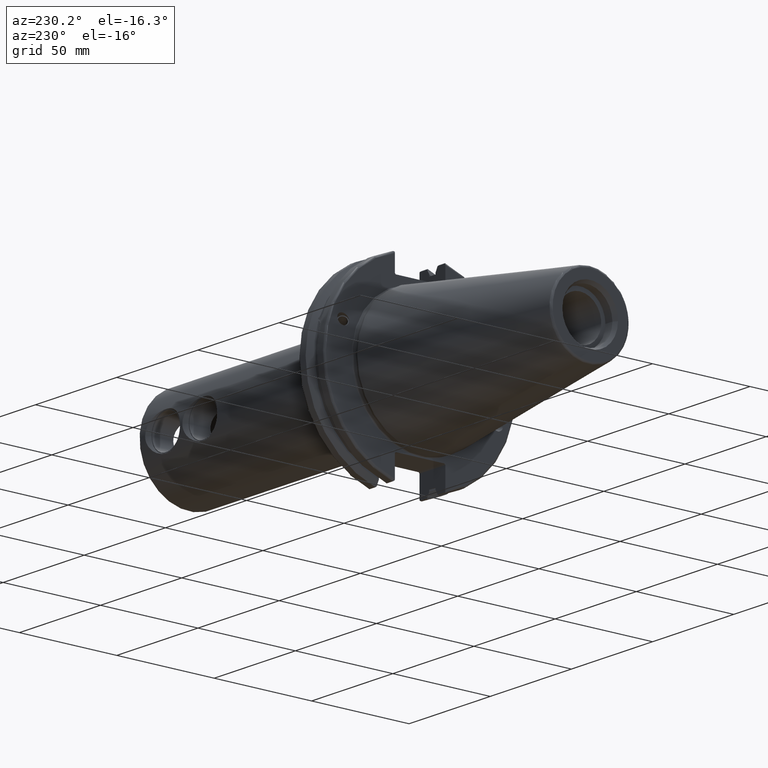
[diagram: clean part render]
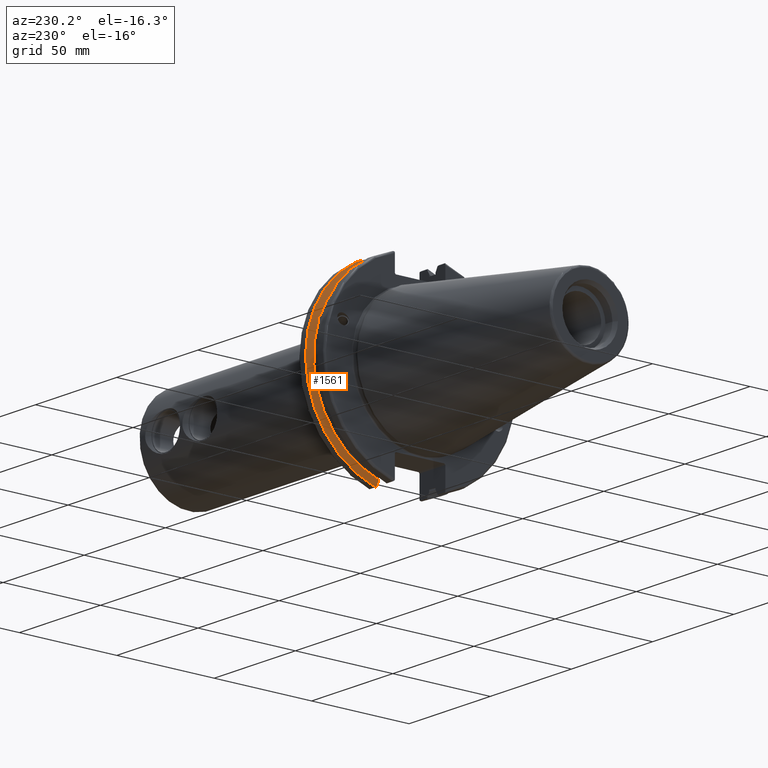
[diagram: same view with one face highlighted and labeled with its STEP entity id]
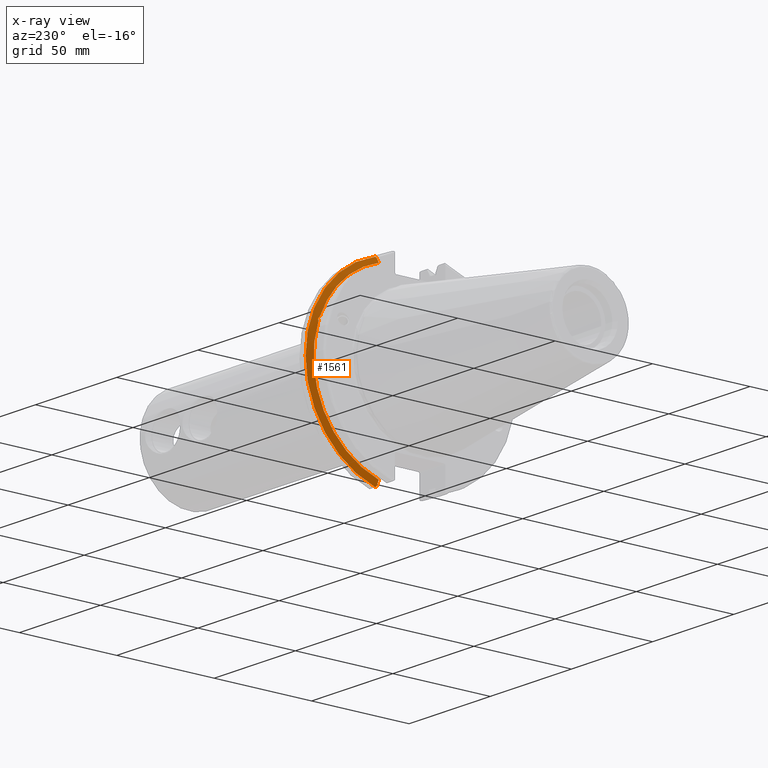
[diagram: x-ray of the same camera — body ghosted, the highlighted face saturated]
A machine part, auxiliary view. The second image highlights one B-rep face of the part: STEP entity #1561.
The next image is the same camera in x-ray: the body ghosted, the highlighted face saturated — about 0% of this face is hidden behind the body in this view.
In plain terms, the highlighted conical surface has half-angle 60 deg.
Its self-contained STEP definition (entity closure, byte-faithful):
#19=(
BOUNDED_CURVE()
B_SPLINE_CURVE(2,(#2975,#2976,#2977),.UNSPECIFIED.,.F.,.F.)
B_SPLINE_CURVE_WITH_KNOTS((3,3),(0.,0.27582391067312),.UNSPECIFIED.)
CURVE()
GEOMETRIC_REPRESENTATION_ITEM()
RATIONAL_B_SPLINE_CURVE((1.,1.00038235574463,1.0001287363678))
REPRESENTATION_ITEM('')
);
#20=(
BOUNDED_CURVE()
B_SPLINE_CURVE(2,(#2979,#2980,#2981),.UNSPECIFIED.,.F.,.F.)
B_SPLINE_CURVE_WITH_KNOTS((3,3),(0.,0.0648240472897789),.UNSPECIFIED.)
CURVE()
GEOMETRIC_REPRESENTATION_ITEM()
RATIONAL_B_SPLINE_CURVE((1.,1.00011477674848,1.00019140645968))
REPRESENTATION_ITEM('')
);
#21=(
BOUNDED_CURVE()
B_SPLINE_CURVE(2,(#2985,#2986,#2987),.UNSPECIFIED.,.F.,.F.)
B_SPLINE_CURVE_WITH_KNOTS((3,3),(0.325260944932466,0.390084992222202),
 .UNSPECIFIED.)
CURVE()
GEOMETRIC_REPRESENTATION_ITEM()
RATIONAL_B_SPLINE_CURVE((1.00019140645958,1.00011477674842,1.))
REPRESENTATION_ITEM('')
);
#22=(
BOUNDED_CURVE()
B_SPLINE_CURVE(2,(#2989,#2990,#2991),.UNSPECIFIED.,.F.,.F.)
B_SPLINE_CURVE_WITH_KNOTS((3,3),(0.0558332664531693,0.331657177124505),
 .UNSPECIFIED.)
CURVE()
GEOMETRIC_REPRESENTATION_ITEM()
RATIONAL_B_SPLINE_CURVE((1.00012873636717,1.00038235574273,1.))
REPRESENTATION_ITEM('')
);
#48=CONICAL_SURFACE('',#1715,47.8172386482472,1.0471975511966);
#156=FACE_OUTER_BOUND('',#262,.T.);
#262=EDGE_LOOP('',(#1218,#1219,#1220,#1221,#1222,#1223,#1224,#1225,#1226));
#350=B_SPLINE_CURVE_WITH_KNOTS('',3,(#2900,#2901,#2902,#2903,#2904,#2905,
#2906,#2907),.UNSPECIFIED.,.F.,.F.,(4,2,2,4),(0.426712868358719,0.441644498666905,
0.480313313223129,0.518982127779353),.UNSPECIFIED.);
#354=B_SPLINE_CURVE_WITH_KNOTS('',3,(#2962,#2963,#2964,#2965,#2966,#2967,
#2968,#2969),.UNSPECIFIED.,.F.,.F.,(4,2,2,4),(0.518982127779353,0.557650942335577,
0.5963197568918,0.611251387199989),.UNSPECIFIED.);
#596=CIRCLE('',#1716,46.4219772964944);
#597=CIRCLE('',#1717,49.2125);
#598=CIRCLE('',#1718,46.4219772964944);
#715=VERTEX_POINT('',#2897);
#716=VERTEX_POINT('',#2899);
#723=VERTEX_POINT('',#2960);
#724=VERTEX_POINT('',#2972);
#725=VERTEX_POINT('',#2974);
#726=VERTEX_POINT('',#2978);
#727=VERTEX_POINT('',#2982);
#728=VERTEX_POINT('',#2984);
#729=VERTEX_POINT('',#2988);
#900=EDGE_CURVE('',#716,#715,#350,.T.);
#908=EDGE_CURVE('',#715,#723,#354,.T.);
#909=EDGE_CURVE('',#723,#724,#596,.T.);
#910=EDGE_CURVE('',#724,#725,#19,.T.);
#911=EDGE_CURVE('',#726,#725,#20,.T.);
#912=EDGE_CURVE('',#727,#726,#597,.T.);
#913=EDGE_CURVE('',#728,#727,#21,.T.);
#914=EDGE_CURVE('',#728,#729,#22,.T.);
#915=EDGE_CURVE('',#729,#716,#598,.T.);
#1218=ORIENTED_EDGE('',*,*,#900,.T.);
#1219=ORIENTED_EDGE('',*,*,#908,.T.);
#1220=ORIENTED_EDGE('',*,*,#909,.T.);
#1221=ORIENTED_EDGE('',*,*,#910,.T.);
#1222=ORIENTED_EDGE('',*,*,#911,.F.);
#1223=ORIENTED_EDGE('',*,*,#912,.F.);
#1224=ORIENTED_EDGE('',*,*,#913,.F.);
#1225=ORIENTED_EDGE('',*,*,#914,.T.);
#1226=ORIENTED_EDGE('',*,*,#915,.T.);
#1561=ADVANCED_FACE('',(#156),#48,.T.);
#1715=AXIS2_PLACEMENT_3D('',#2971,#2003,#2004);
#1716=AXIS2_PLACEMENT_3D('',#2973,#2005,#2006);
#1717=AXIS2_PLACEMENT_3D('',#2983,#2007,#2008);
#1718=AXIS2_PLACEMENT_3D('',#2992,#2009,#2010);
#2003=DIRECTION('center_axis',(1.,0.,0.));
#2004=DIRECTION('ref_axis',(0.,1.,0.));
#2005=DIRECTION('center_axis',(1.,0.,0.));
#2006=DIRECTION('ref_axis',(0.,0.,-1.));
#2007=DIRECTION('center_axis',(1.,0.,0.));
#2008=DIRECTION('ref_axis',(0.,0.,-1.));
#2009=DIRECTION('center_axis',(1.,0.,0.));
#2010=DIRECTION('ref_axis',(0.,0.,-1.));
#2897=CARTESIAN_POINT('',(13.2341,43.923494649906,15.9868446375166));
#2899=CARTESIAN_POINT('',(13.0491,43.9096390749305,15.0646464421033));
#2900=CARTESIAN_POINT('Ctrl Pts',(13.0491,43.9096390749305,15.0646464421033));
#2901=CARTESIAN_POINT('Ctrl Pts',(13.0660815609661,43.9250360001461,15.1104047527575));
#2902=CARTESIAN_POINT('Ctrl Pts',(13.0821132459668,43.9385582852181,15.1564111356409));
#2903=CARTESIAN_POINT('Ctrl Pts',(13.1358132615496,43.9797830409459,15.3217566390709));
#2904=CARTESIAN_POINT('Ctrl Pts',(13.1719838933644,43.9989016655819,15.4570249042868));
#2905=CARTESIAN_POINT('Ctrl Pts',(13.2212913174802,43.9931221605126,15.7289849146254));
#2906=CARTESIAN_POINT('Ctrl Pts',(13.2341,43.9675796948952,15.8657219718732));
#2907=CARTESIAN_POINT('Ctrl Pts',(13.2341,43.923494649906,15.9868446375166));
#2960=CARTESIAN_POINT('',(13.0491,43.3201030900029,16.684383248648));
#2962=CARTESIAN_POINT('Ctrl Pts',(13.2341,43.923494649906,15.9868446375166));
#2963=CARTESIAN_POINT('Ctrl Pts',(13.2341,43.8794096049169,16.10796730316));
#2964=CARTESIAN_POINT('Ctrl Pts',(13.2212913174802,43.8110833825828,16.2291323464527));
#2965=CARTESIAN_POINT('Ctrl Pts',(13.1719838933644,43.6406982153492,16.441180795372));
#2966=CARTESIAN_POINT('Ctrl Pts',(13.1358132615496,43.5391037343221,16.5325130832406));
#2967=CARTESIAN_POINT('Ctrl Pts',(13.0821132459668,43.4012416983557,16.6326763251437));
#2968=CARTESIAN_POINT('Ctrl Pts',(13.0660815609661,43.3613106941341,16.6592273018006));
#2969=CARTESIAN_POINT('Ctrl Pts',(13.0491,43.3201030900029,16.684383248648));
#2971=CARTESIAN_POINT('Origin',(13.8546545170244,0.,0.));
#2972=CARTESIAN_POINT('',(13.0491,12.95,44.5791147973604));
#2973=CARTESIAN_POINT('Origin',(13.0491,0.,0.));
#2974=CARTESIAN_POINT('',(14.3818103943757,12.95,46.9780755322918));
#2975=CARTESIAN_POINT('Ctrl Pts',(13.0491,12.95,44.5791147973604));
#2976=CARTESIAN_POINT('Ctrl Pts',(13.6979955094656,12.95,45.7494966802583));
#2977=CARTESIAN_POINT('Ctrl Pts',(14.3818103943757,12.95,46.9780755322918));
#2978=CARTESIAN_POINT('',(14.6602090340487,13.4317035994433,47.3440544806494));
#2979=CARTESIAN_POINT('Ctrl Pts',(14.6602090340487,13.4317035994433,47.3440544806494));
#2980=CARTESIAN_POINT('Ctrl Pts',(14.5199310333618,13.1896660169966,47.1601640966264));
#2981=CARTESIAN_POINT('Ctrl Pts',(14.3818103943757,12.95,46.9780755322918));
#2982=CARTESIAN_POINT('',(14.6602090340487,13.4317035994433,-47.3440544806494));
#2983=CARTESIAN_POINT('Origin',(14.6602090340487,0.,0.));
#2984=CARTESIAN_POINT('',(14.3818103943757,12.95,-46.9780755322918));
#2985=CARTESIAN_POINT('Ctrl Pts',(14.3818103943757,12.95,-46.9780755322918));
#2986=CARTESIAN_POINT('Ctrl Pts',(14.5199310333618,13.1896660169966,-47.1601640966264));
#2987=CARTESIAN_POINT('Ctrl Pts',(14.6602090340487,13.4317035994433,-47.3440544806494));
#2988=CARTESIAN_POINT('',(13.0491,12.95,-44.5791147973605));
#2989=CARTESIAN_POINT('Ctrl Pts',(14.3818103943757,12.95,-46.9780755322918));
#2990=CARTESIAN_POINT('Ctrl Pts',(13.6979955094864,12.95,-45.7494966802956));
#2991=CARTESIAN_POINT('Ctrl Pts',(13.0491,12.95,-44.5791147973604));
#2992=CARTESIAN_POINT('Origin',(13.0491,0.,0.));